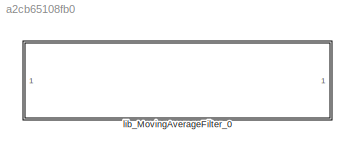
MODEL slx_a2cb65108fb0
KIND library
CONFIG AbsTol = auto
CONFIG EnableMultiTasking = off
CONFIG FixedStep = auto
CONFIG MaxStep = auto
CONFIG MinStep = auto
CONFIG RelTol = 1e-3
CONFIG SampleTimeConstraint = Unconstrained
CONFIG SolverName = VariableStepAuto
CONFIG StartTime = 0.0
CONFIG StopTime = 10.0
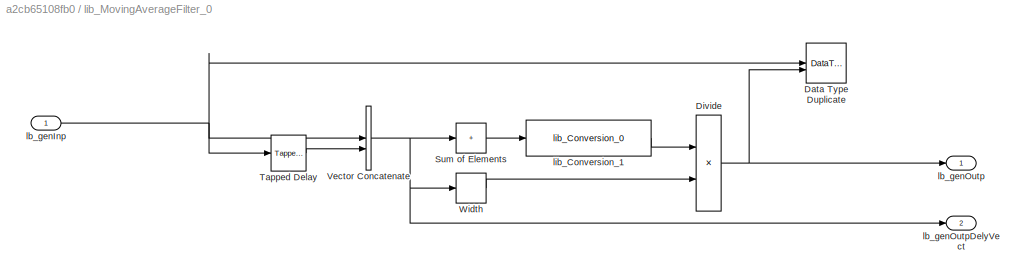
BLOCK [SubSystem] lib_MovingAverageFilter_0
BLOCK [DataTypeDuplicate] lib_MovingAverageFilter_0/Data Type Duplicate
BLOCK [Product] lib_MovingAverageFilter_0/Divide
  Inputs = */
  OutDataTypeStr = Inherit: Inherit via back propagation
  RndMeth = Simplest
BLOCK [Sum] lib_MovingAverageFilter_0/Sum of Elements
  IconShape = rectangular
  Inputs = +
  OutDataTypeStr = Inherit: Inherit via back propagation
  RndMeth = Simplest
BLOCK [Reference] lib_MovingAverageFilter_0/Tapped Delay  REF=simulink/Discrete/Tapped Delay
  SourceBlock = simulink/Discrete/Tapped Delay
  SourceType = Tapped Delay Line
BLOCK [Concatenate] lib_MovingAverageFilter_0/Vector Concatenate
BLOCK [Width] lib_MovingAverageFilter_0/Width
  DataType = uint16
BLOCK [Inport] lib_MovingAverageFilter_0/lb_genInp 
BLOCK [Outport] lib_MovingAverageFilter_0/lb_genOutp
  VectorParamsAs1DForOutWhenUnconnected = off
BLOCK [Outport] lib_MovingAverageFilter_0/lb_genOutpDelyVect
  Port = 2
BLOCK [Reference] lib_MovingAverageFilter_0/lib_Conversion_1  REF=lib_conversion/lib_Conversion_0  (lib defined in slx_7f5c0202220d)
  SourceBlock = lib_conversion/lib_Conversion_0
NET lib_MovingAverageFilter_0/Divide:1 -> lib_MovingAverageFilter_0/Data Type Duplicate:2, lib_MovingAverageFilter_0/lb_genOutp:1
LINE lib_MovingAverageFilter_0/Sum of Elements:1 -> lib_MovingAverageFilter_0/lib_Conversion_1:1
LINE lib_MovingAverageFilter_0/Tapped Delay:1 -> lib_MovingAverageFilter_0/Vector Concatenate:2
NET lib_MovingAverageFilter_0/Vector Concatenate:1 -> lib_MovingAverageFilter_0/Sum of Elements:1, lib_MovingAverageFilter_0/Width:1, lib_MovingAverageFilter_0/lb_genOutpDelyVect:1
LINE lib_MovingAverageFilter_0/Width:1 -> lib_MovingAverageFilter_0/Divide:2
NET lib_MovingAverageFilter_0/lb_genInp :1 -> lib_MovingAverageFilter_0/Data Type Duplicate:1, lib_MovingAverageFilter_0/Tapped Delay:1, lib_MovingAverageFilter_0/Vector Concatenate:1
LINE lib_MovingAverageFilter_0/lib_Conversion_1:1 -> lib_MovingAverageFilter_0/Divide:1
note: NET lines group one-source signal fan-out (src -> all destinations, sorted); 1:1 wires keep LINE
